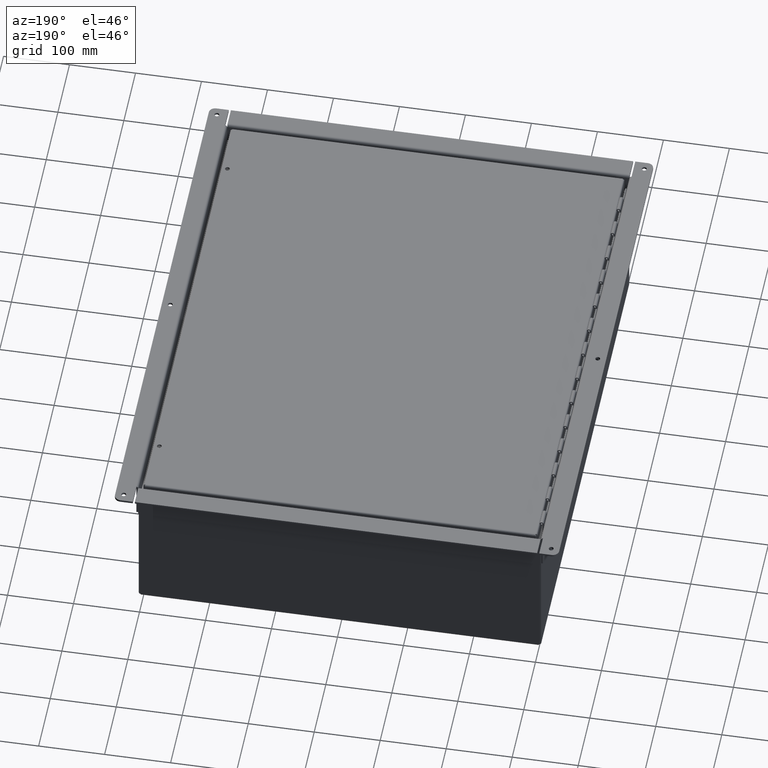
[diagram: clean part render]
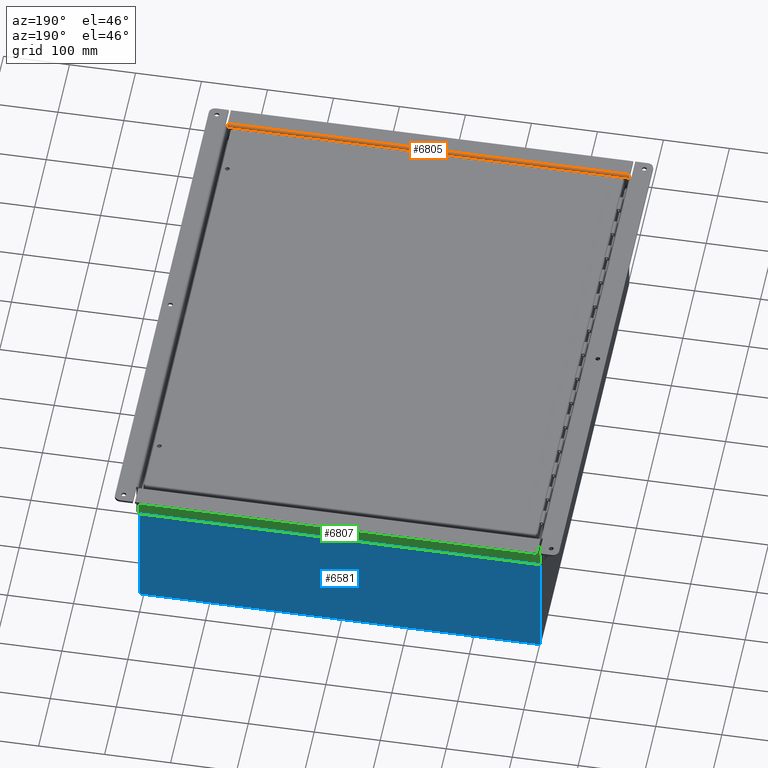
[diagram: same view with three faces highlighted in distinct colors, each labeled with its STEP entity id]
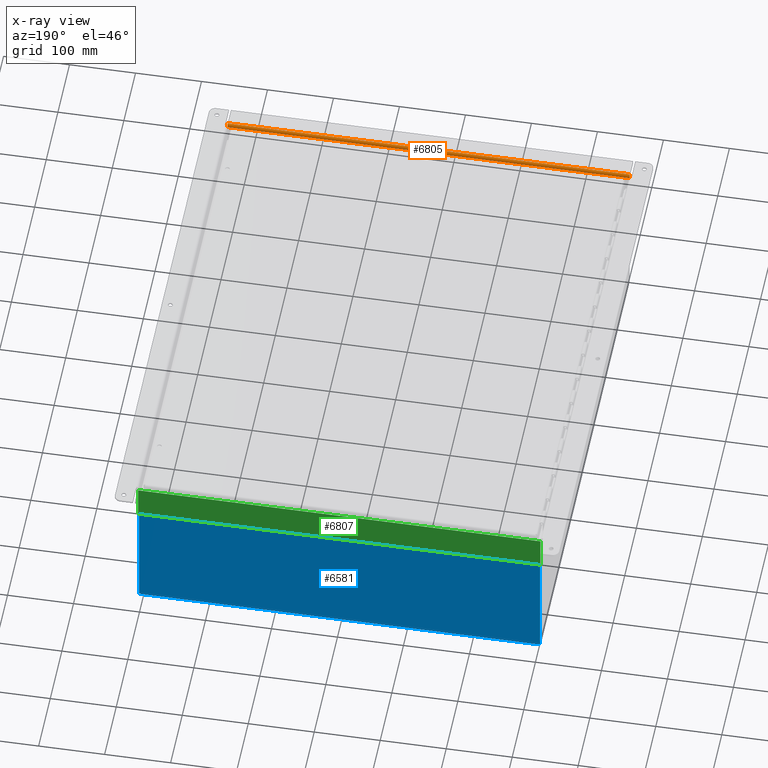
[diagram: x-ray of the same camera — body ghosted, the three highlighted faces saturated]
A machine part, auxiliary view with three faces highlighted in distinct colors.
The next image is the same camera in x-ray (body ghosted, the three faces saturated) — at least one of them is partly hidden behind the body in this view.
Their STEP definitions:

[orange] entity #6805 — the highlighted cylindrical surface (edge-blend (fillet) strip) has radius 3.9688 mm, axis along (-1, -0, 0).
#290=CIRCLE($,#7343,0.15625);
#291=CIRCLE($,#7344,0.15625);
#1019=FACE_OUTER_BOUND($,#1463,.T.);
#1463=EDGE_LOOP($,(#5793,#5794,#5795,#5796));
#2109=LINE($,#12095,#2737);
#2110=LINE($,#12099,#2738);
#2737=VECTOR($,#8987,24.);
#2738=VECTOR($,#8990,24.);
#3257=VERTEX_POINT($,#12093);
#3258=VERTEX_POINT($,#12094);
#3259=VERTEX_POINT($,#12096);
#3260=VERTEX_POINT($,#12098);
#4109=EDGE_CURVE($,#3257,#3258,#2109,.T.);
#4110=EDGE_CURVE($,#3259,#3257,#290,.T.);
#4111=EDGE_CURVE($,#3260,#3259,#2110,.T.);
#4112=EDGE_CURVE($,#3258,#3260,#291,.T.);
#5793=ORIENTED_EDGE($,*,*,#4109,.F.);
#5794=ORIENTED_EDGE($,*,*,#4110,.F.);
#5795=ORIENTED_EDGE($,*,*,#4111,.F.);
#5796=ORIENTED_EDGE($,*,*,#4112,.F.);
#6047=CYLINDRICAL_SURFACE($,#7342,0.15625);
#6805=ADVANCED_FACE($,(#1019),#6047,.T.);
#7342=AXIS2_PLACEMENT_3D($,#12092,#8985,#8986);
#7343=AXIS2_PLACEMENT_3D($,#12097,#8988,#8989);
#7344=AXIS2_PLACEMENT_3D($,#12100,#8991,#8992);
#8985=DIRECTION('center_axis',(1.8576566356917E-016,-1.,0.));
#8986=DIRECTION('ref_axis',(0.,0.,1.));
#8987=DIRECTION($,(-1.77465492903003E-016,1.,-1.52523038029702E-032));
#8988=DIRECTION('center_axis',(1.8576566356917E-016,-1.,0.));
#8989=DIRECTION('ref_axis',(7.60896157979319E-014,0.,1.));
#8990=DIRECTION($,(1.89408127560722E-016,-1.,0.));
#8991=DIRECTION('center_axis',(-1.8576566356917E-016,1.,0.));
#8992=DIRECTION('ref_axis',(-1.,0.,6.99353086378052E-017));
#12092=CARTESIAN_POINT('Origin',(-0.531250000000003,0.,-0.0312500000000001));
#12093=CARTESIAN_POINT('',(-0.687500000000001,-12.,-0.0312499999999998));
#12094=CARTESIAN_POINT('',(-0.687500000000005,12.,-0.0312499999999998));
#12095=CARTESIAN_POINT($,(-0.687500000000003,6.69498989177175E-017,-0.0312499999999999));
#12096=CARTESIAN_POINT('',(-0.531249999999998,-12.,0.125));
#12097=CARTESIAN_POINT('Origin',(-0.531250000000001,-12.,-0.0312500000000001));
#12098=CARTESIAN_POINT('',(-0.531250000000003,12.,0.125));
#12099=CARTESIAN_POINT($,(-0.531250000000002,5.99999999999998,0.125));
#12100=CARTESIAN_POINT('Origin',(-0.531250000000005,12.,-0.0312500000000001));

[blue] entity #6581 — the highlighted planar face has unit normal (-0, -1, 0).
#174=CIRCLE($,#7002,0.07);
#176=CIRCLE($,#7006,0.07);
#503=PLANE($,#7005);
#803=FACE_OUTER_BOUND($,#1192,.T.);
#1192=EDGE_LOOP($,(#4792,#4793,#4794,#4795,#4796,#4797,#4798,#4799));
#1671=LINE($,#10275,#2299);
#1684=LINE($,#10329,#2312);
#1685=LINE($,#10332,#2313);
#1688=LINE($,#10338,#2316);
#1759=LINE($,#10772,#2387);
#1760=LINE($,#10774,#2388);
#2299=VECTOR($,#7773,23.8299029130882);
#2312=VECTOR($,#7796,0.0480485434560074);
#2313=VECTOR($,#7799,0.0480485434557682);
#2316=VECTOR($,#7804,7.76729986440823);
#2387=VECTOR($,#7963,7.76729986440823);
#2388=VECTOR($,#7964,23.7655336786487);
#2887=VERTEX_POINT($,#10248);
#2888=VERTEX_POINT($,#10264);
#2896=VERTEX_POINT($,#10327);
#2897=VERTEX_POINT($,#10331);
#2899=VERTEX_POINT($,#10337);
#2957=VERTEX_POINT($,#10742);
#2958=VERTEX_POINT($,#10744);
#2963=VERTEX_POINT($,#10773);
#3510=EDGE_CURVE($,#2887,#2888,#1671,.T.);
#3524=EDGE_CURVE($,#2888,#2896,#1684,.T.);
#3525=EDGE_CURVE($,#2897,#2887,#1685,.T.);
#3528=EDGE_CURVE($,#2897,#2899,#1688,.T.);
#3620=EDGE_CURVE($,#2958,#2957,#174,.T.);
#3627=EDGE_CURVE($,#2958,#2896,#1759,.T.);
#3628=EDGE_CURVE($,#2957,#2963,#1760,.T.);
#3629=EDGE_CURVE($,#2963,#2899,#176,.T.);
#4792=ORIENTED_EDGE($,*,*,#3525,.T.);
#4793=ORIENTED_EDGE($,*,*,#3510,.T.);
#4794=ORIENTED_EDGE($,*,*,#3524,.T.);
#4795=ORIENTED_EDGE($,*,*,#3627,.F.);
#4796=ORIENTED_EDGE($,*,*,#3620,.T.);
#4797=ORIENTED_EDGE($,*,*,#3628,.T.);
#4798=ORIENTED_EDGE($,*,*,#3629,.T.);
#4799=ORIENTED_EDGE($,*,*,#3528,.F.);
#6581=ADVANCED_FACE($,(#803),#503,.F.);
#7002=AXIS2_PLACEMENT_3D($,#10745,#7952,#7953);
#7005=AXIS2_PLACEMENT_3D($,#10771,#7961,#7962);
#7006=AXIS2_PLACEMENT_3D($,#10775,#7965,#7966);
#7773=DIRECTION($,(1.,-1.93226087682578E-018,0.));
#7796=DIRECTION($,(1.,-1.93226087682578E-018,0.));
#7799=DIRECTION($,(1.,-1.93226087682578E-018,0.));
#7804=DIRECTION($,(0.,-5.32907051820075E-015,-1.));
#7952=DIRECTION('center_axis',(-1.93226087682578E-018,-1.,5.25371934355681E-015));
#7953=DIRECTION('ref_axis',(1.,0.,0.));
#7961=DIRECTION('center_axis',(-1.93226087682578E-018,-1.,5.25371934355681E-015));
#7962=DIRECTION('ref_axis',(1.,0.,0.));
#7963=DIRECTION($,(0.,5.39030285815812E-015,1.));
#7964=DIRECTION($,(-1.,1.93226087682578E-018,-1.04154713270611E-032));
#7965=DIRECTION('center_axis',(-1.93226087682578E-018,-1.,5.25371934355681E-015));
#7966=DIRECTION('ref_axis',(1.,0.,0.));
#10248=CARTESIAN_POINT('',(-11.9149514565442,15.,7.89475));
#10264=CARTESIAN_POINT('',(11.914951456544,15.,7.89475));
#10275=CARTESIAN_POINT($,(-5.9815,15.,7.89475));
#10327=CARTESIAN_POINT('',(11.963,15.,7.89475));
#10329=CARTESIAN_POINT($,(-5.9815,15.,7.89475));
#10331=CARTESIAN_POINT('',(-11.963,15.,7.89475));
#10332=CARTESIAN_POINT($,(-5.9815,15.,7.89475));
#10337=CARTESIAN_POINT('',(-11.963,15.,0.127450135591771));
#10338=CARTESIAN_POINT($,(-11.963,15.,-0.0673176844616837));
#10742=CARTESIAN_POINT('',(11.8827668393244,15.,0.105250000000001));
#10744=CARTESIAN_POINT('',(11.963,15.,0.127450135591766));
#10745=CARTESIAN_POINT('Origin',(11.9378919211154,15.,0.0621080788845785));
#10771=CARTESIAN_POINT('Origin',(2.09805925913415E-015,15.,4.00948307888458));
#10772=CARTESIAN_POINT($,(11.963,15.,0.105250000000001));
#10773=CARTESIAN_POINT('',(-11.8827668393244,15.,0.105250000000001));
#10774=CARTESIAN_POINT($,(3.14713750438489E-015,15.,0.105250000000001));
#10775=CARTESIAN_POINT('Origin',(-11.9378919211154,15.,0.0621080788845785));

[green] entity #6807 — the highlighted planar face has unit normal (-0, -1, 0).
#649=PLANE($,#7346);
#1021=FACE_OUTER_BOUND($,#1465,.T.);
#1465=EDGE_LOOP($,(#5801,#5802,#5803,#5804));
#2112=LINE($,#12105,#2740);
#2115=LINE($,#12111,#2743);
#2116=LINE($,#12113,#2744);
#2117=LINE($,#12114,#2745);
#2740=VECTOR($,#8996,1.96875);
#2743=VECTOR($,#9001,24.);
#2744=VECTOR($,#9002,1.96875);
#2745=VECTOR($,#9003,24.);
#3261=VERTEX_POINT($,#12102);
#3262=VERTEX_POINT($,#12104);
#3264=VERTEX_POINT($,#12110);
#3265=VERTEX_POINT($,#12112);
#4114=EDGE_CURVE($,#3262,#3261,#2112,.T.);
#4117=EDGE_CURVE($,#3261,#3264,#2115,.T.);
#4118=EDGE_CURVE($,#3265,#3264,#2116,.T.);
#4119=EDGE_CURVE($,#3265,#3262,#2117,.T.);
#5801=ORIENTED_EDGE($,*,*,#4117,.T.);
#5802=ORIENTED_EDGE($,*,*,#4118,.F.);
#5803=ORIENTED_EDGE($,*,*,#4119,.T.);
#5804=ORIENTED_EDGE($,*,*,#4114,.T.);
#6807=ADVANCED_FACE($,(#1021),#649,.F.);
#7346=AXIS2_PLACEMENT_3D($,#12109,#8999,#9000);
#8996=DIRECTION($,(2.32531041656208E-016,1.8576566356917E-016,1.));
#8999=DIRECTION('center_axis',(-1.,-1.7755428192532E-016,1.82592669661982E-015));
#9000=DIRECTION('ref_axis',(1.69197988952874E-015,-1.8576566356917E-016,
1.));
#9001=DIRECTION($,(1.7755428192532E-016,-1.,1.50891460563148E-032));
#9002=DIRECTION($,(1.77635683940025E-015,1.8576566356917E-016,1.));
#9003=DIRECTION($,(-1.78480735586066E-016,1.,-1.63910879619856E-016));
#12102=CARTESIAN_POINT('',(-0.562500000000005,12.,-0.0312500000000001));
#12104=CARTESIAN_POINT('',(-0.562500000000009,12.,-2.));
#12105=CARTESIAN_POINT($,(-0.562500000000005,12.,0.146642684009522));
#12109=CARTESIAN_POINT('Origin',(-0.562500000000005,9.79003504143904E-017,
-0.971151828997618));
#12110=CARTESIAN_POINT('',(-0.562500000000001,-12.,-0.0312500000000001));
#12111=CARTESIAN_POINT($,(-0.562500000000003,4.59434048093207E-017,-0.0312500000000001));
#12112=CARTESIAN_POINT('',(-0.562500000000004,-12.,-2.));
#12113=CARTESIAN_POINT($,(-0.5625,-12.,0.146642684009526));
#12114=CARTESIAN_POINT($,(-0.562500000000004,-12.,-2.));